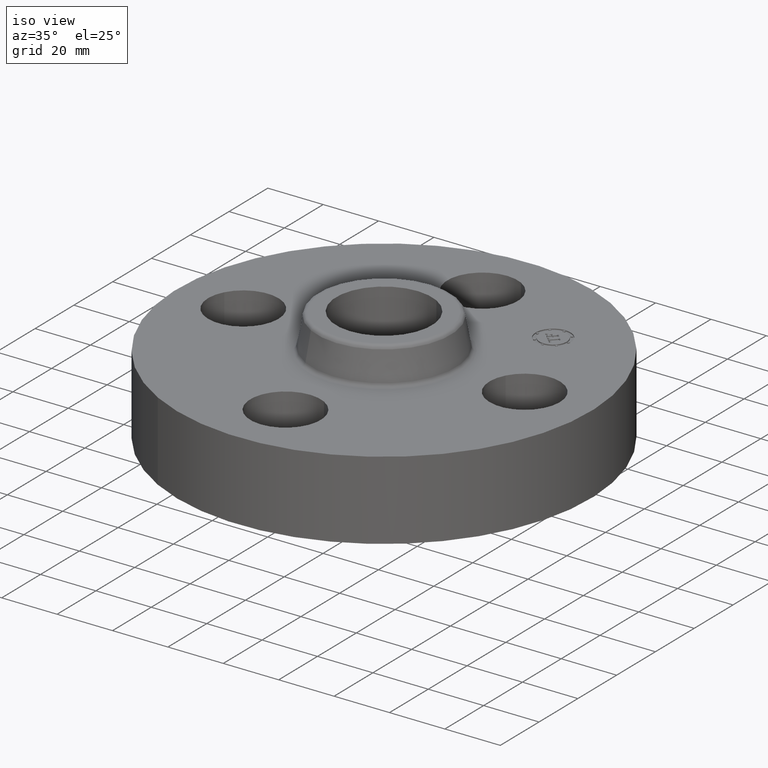
[diagram: clean part render]
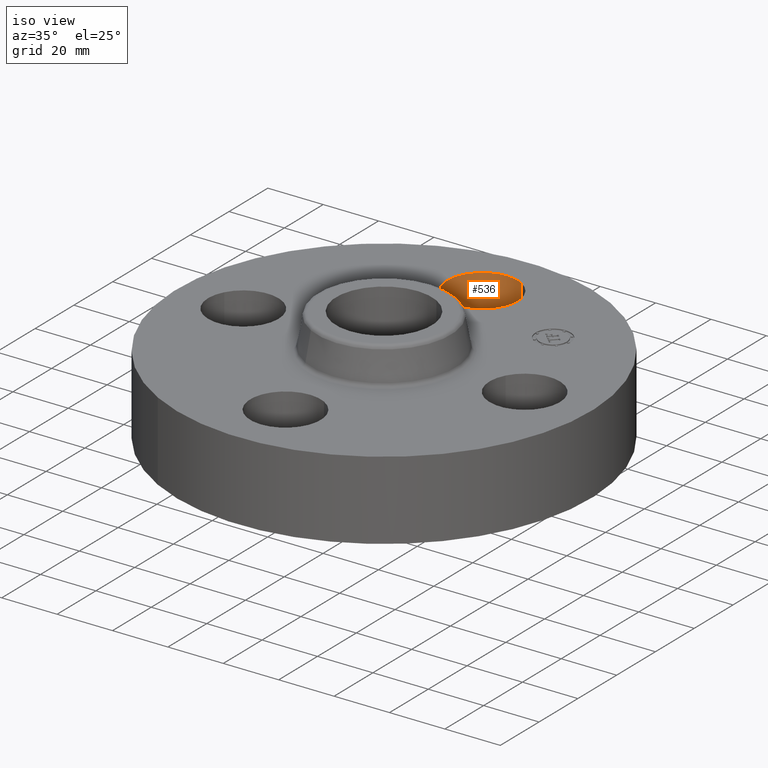
[diagram: same view with one face highlighted and labeled with its STEP entity id]
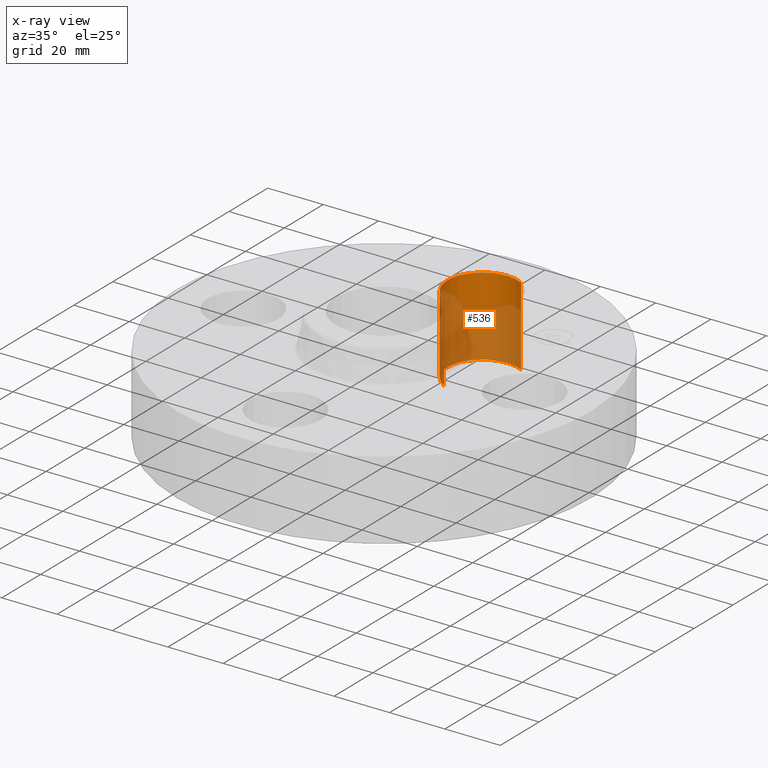
[diagram: x-ray of the same camera — body ghosted, the highlighted face saturated]
A machine part, iso view. The second image highlights one B-rep face of the part: STEP entity #536.
The next image is the same camera in x-ray: the body ghosted, the highlighted face saturated — about 68% of this face is hidden behind the body in this view.
In plain terms, the highlighted cylindrical surface (partial cylindrical patch) has radius 12.7 mm, axis along (0, 0, -1).
Its self-contained STEP definition (entity closure, byte-faithful):
#489=AXIS2_PLACEMENT_3D('Circle Axis2P3D',#487,#488,$) ;
#509=AXIS2_PLACEMENT_3D('Cylinder Axis2P3D',#506,#507,#508) ;
#527=AXIS2_PLACEMENT_3D('Circle Axis2P3D',#525,#526,$) ;
#487=CARTESIAN_POINT('Axis2P3D Location',(-3.49676543189E-016,2.00000000001,0.)) ;
#491=CARTESIAN_POINT('Vertex',(-0.239712769303,1.56120871906,0.)) ;
#493=CARTESIAN_POINT('Vertex',(0.239712769303,2.43879128095,0.)) ;
#506=CARTESIAN_POINT('Axis2P3D Location',(-3.67394039746E-016,2.00000000001,1.11606299213)) ;
#511=CARTESIAN_POINT('Line Origine',(-0.239712769303,1.56120871906,0.560000000002)) ;
#515=CARTESIAN_POINT('Vertex',(-0.239712769303,1.56120871906,1.12)) ;
#518=CARTESIAN_POINT('Line Origine',(0.239712769303,2.43879128095,0.560000000002)) ;
#522=CARTESIAN_POINT('Vertex',(0.239712769303,2.43879128095,1.12)) ;
#525=CARTESIAN_POINT('Axis2P3D Location',(-3.67394039746E-016,2.00000000001,1.12)) ;
#488=DIRECTION('Axis2P3D Direction',(0.,0.,-0.0393700787402)) ;
#507=DIRECTION('Axis2P3D Direction',(0.,0.,-0.0393700787402)) ;
#508=DIRECTION('Axis2P3D XDirection',(0.0188750212049,0.0345504945626,0.)) ;
#512=DIRECTION('Vector Direction',(0.,0.,-0.0393700787402)) ;
#519=DIRECTION('Vector Direction',(0.,0.,-0.0393700787402)) ;
#526=DIRECTION('Axis2P3D Direction',(0.,0.,-0.0393700787402)) ;
#513=VECTOR('Line Direction',#512,0.0393700787402) ;
#520=VECTOR('Line Direction',#519,0.0393700787402) ;
#531=ORIENTED_EDGE('',*,*,#517,.F.) ;
#532=ORIENTED_EDGE('',*,*,#495,.T.) ;
#533=ORIENTED_EDGE('',*,*,#524,.T.) ;
#534=ORIENTED_EDGE('',*,*,#529,.F.) ;
#536=ADVANCED_FACE('PartBody',(#535),#510,.F.) ;
#490=CIRCLE('generated circle',#489,0.500000000002) ;
#528=CIRCLE('generated circle',#527,0.500000000002) ;
#510=CYLINDRICAL_SURFACE('generated cylinder',#509,0.500000000002) ;
#495=EDGE_CURVE('',#492,#494,#490,.T.) ;
#517=EDGE_CURVE('',#492,#516,#514,.F.) ;
#524=EDGE_CURVE('',#494,#523,#521,.F.) ;
#529=EDGE_CURVE('',#516,#523,#528,.T.) ;
#530=EDGE_LOOP('',(#531,#532,#533,#534)) ;
#535=FACE_OUTER_BOUND('',#530,.T.) ;
#514=LINE('Line',#511,#513) ;
#521=LINE('Line',#518,#520) ;
#492=VERTEX_POINT('',#491) ;
#494=VERTEX_POINT('',#493) ;
#516=VERTEX_POINT('',#515) ;
#523=VERTEX_POINT('',#522) ;